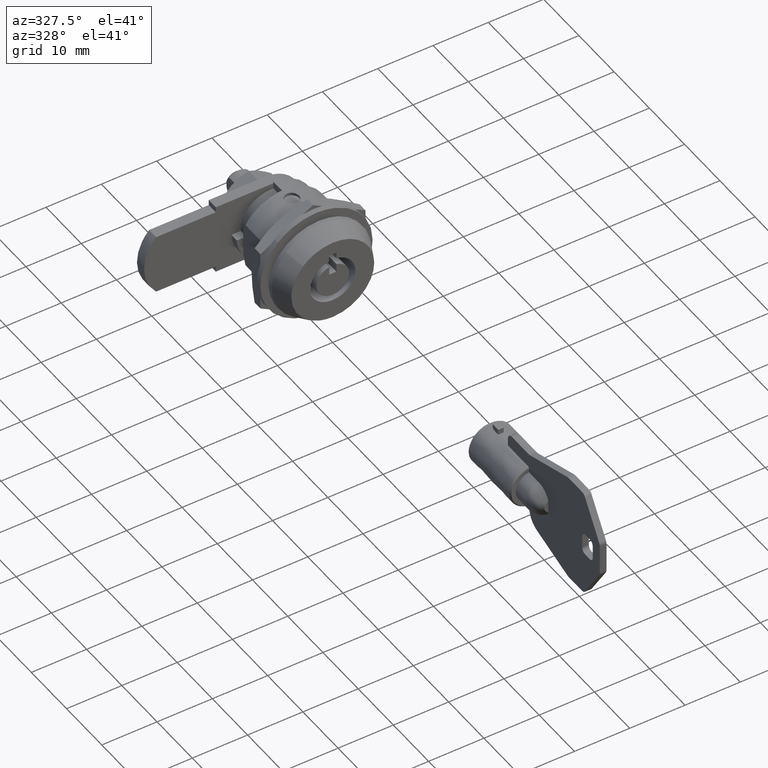
[diagram: clean part render]
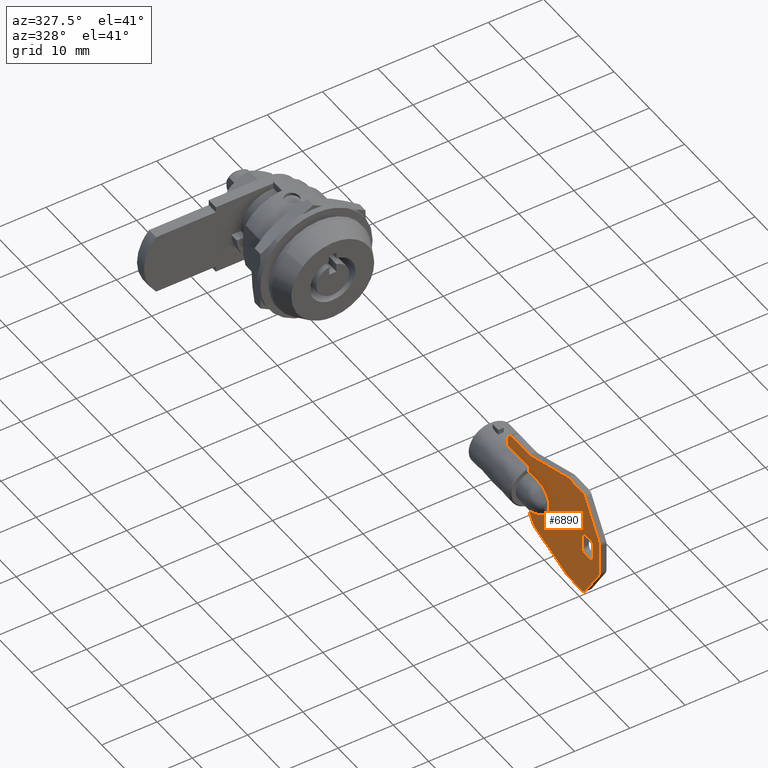
[diagram: same view with one face highlighted and labeled with its STEP entity id]
A machine part, auxiliary view. The second image highlights one B-rep face of the part: STEP entity #6890.
In plain terms, the highlighted face is a freeform B-spline surface patch.
Its self-contained STEP definition (entity closure, byte-faithful):
#5679=CARTESIAN_POINT('',(-56.449500000000000,0.600000000000000,3.954743986656835));
#5680=VERTEX_POINT('',#5679);
#5696=CARTESIAN_POINT('',(-50.649500000000003,0.600000000000000,3.954743986656835));
#5697=VERTEX_POINT('',#5696);
#5698=CARTESIAN_POINT('',(-50.649500000000003,0.600000000000000,3.954743986656835));
#5699=CARTESIAN_POINT('',(-56.449500000000000,0.600000000000000,3.954743986656835));
#5700=QUASI_UNIFORM_CURVE('',1,(#5698,#5699),.UNSPECIFIED.,.F.,.U.);
#5701=EDGE_CURVE('',#5697,#5680,#5700,.T.);
#5800=CARTESIAN_POINT('',(-71.749499999999998,0.600000000000000,1.200000000000000));
#5801=VERTEX_POINT('',#5800);
#5807=CARTESIAN_POINT('',(-71.749499999999998,0.600000000000045,-1.200000000000088));
#5808=VERTEX_POINT('',#5807);
#5809=CARTESIAN_POINT('',(-71.749499999999998,0.600000000000045,-1.200000000000088));
#5810=CARTESIAN_POINT('',(-71.749499999999998,0.600000000000000,1.200000000000000));
#5811=QUASI_UNIFORM_CURVE('',1,(#5809,#5810),.UNSPECIFIED.,.F.,.U.);
#5812=EDGE_CURVE('',#5808,#5801,#5811,.T.);
#5850=CARTESIAN_POINT('',(-72.549500000000009,0.600000000000045,-2.0));
#5851=VERTEX_POINT('',#5850);
#5852=CARTESIAN_POINT('',(-72.549500000000009,0.600000000000045,-2.0));
#5853=CARTESIAN_POINT('',(-72.451308555489618,0.600000000000045,-2.000092947249155));
#5854=CARTESIAN_POINT('',(-72.294301021157239,0.600000000000045,-1.970691603403367));
#5855=CARTESIAN_POINT('',(-72.083872913055274,0.600000000000044,-1.861520411829044));
#5856=CARTESIAN_POINT('',(-71.907328547236588,0.600000000000045,-1.701605605725473));
#5857=CARTESIAN_POINT('',(-71.778965035456693,0.600000000000045,-1.468350441424316));
#5858=CARTESIAN_POINT('',(-71.749464732770207,0.600000000000044,-1.285083247688187));
#5859=CARTESIAN_POINT('',(-71.749499999999998,0.600000000000045,-1.200000000000088));
#5860=B_SPLINE_CURVE_WITH_KNOTS('',3,(#5852,#5853,#5854,#5855,#5856,#5857,#5858,#5859),.UNSPECIFIED.,.F.,.U.,(4,1,1,1,1,4),(0.000000253206061,0.294531439952640,0.471268046318090,0.706859723835922,1.001410568969660,1.256668595518175),.UNSPECIFIED.);
#5861=EDGE_CURVE('',#5851,#5808,#5860,.T.);
#5884=CARTESIAN_POINT('',(-73.949500000000000,0.600000000000045,-2.000000000000085));
#5885=VERTEX_POINT('',#5884);
#5886=CARTESIAN_POINT('',(-73.949500000000000,0.600000000000045,-2.000000000000085));
#5887=CARTESIAN_POINT('',(-72.549500000000009,0.600000000000045,-2.0));
#5888=QUASI_UNIFORM_CURVE('',1,(#5886,#5887),.UNSPECIFIED.,.F.,.U.);
#5889=EDGE_CURVE('',#5885,#5851,#5888,.T.);
#5927=CARTESIAN_POINT('',(-74.749499999999998,0.600000000000045,-1.200000000000088));
#5928=VERTEX_POINT('',#5927);
#5929=CARTESIAN_POINT('',(-74.749499999999998,0.600000000000045,-1.200000000000088));
#5930=CARTESIAN_POINT('',(-74.749542556855019,0.600000000000045,-1.285089375737021));
#5931=CARTESIAN_POINT('',(-74.724202793623178,0.600000000000046,-1.442144080449327));
#5932=CARTESIAN_POINT('',(-74.628589877570647,0.600000000000044,-1.637992890966692));
#5933=CARTESIAN_POINT('',(-74.476026517350377,0.600000000000044,-1.819488120227156));
#5934=CARTESIAN_POINT('',(-74.250554162845461,0.600000000000049,-1.962198045736509));
#5935=CARTESIAN_POINT('',(-74.047681189605385,0.600000000000041,-2.000076958715067));
#5936=CARTESIAN_POINT('',(-73.949500000000000,0.600000000000045,-2.000000000000085));
#5937=B_SPLINE_CURVE_WITH_KNOTS('',3,(#5929,#5930,#5931,#5932,#5933,#5934,#5935,#5936),.UNSPECIFIED.,.F.,.U.,(4,1,1,1,1,4),(0.000000253213507,0.255258279759457,0.471268046321834,0.647931859035308,0.962137408771080,1.256668595518347),.UNSPECIFIED.);
#5938=EDGE_CURVE('',#5928,#5885,#5937,.T.);
#5961=CARTESIAN_POINT('',(-74.749499999999998,0.600000000000045,1.200000000000000));
#5962=VERTEX_POINT('',#5961);
#5963=CARTESIAN_POINT('',(-74.749499999999998,0.600000000000045,1.200000000000000));
#5964=CARTESIAN_POINT('',(-74.749499999999998,0.600000000000045,-1.200000000000088));
#5965=QUASI_UNIFORM_CURVE('',1,(#5963,#5964),.UNSPECIFIED.,.F.,.U.);
#5966=EDGE_CURVE('',#5962,#5928,#5965,.T.);
#6004=CARTESIAN_POINT('',(-73.949500000000000,0.600000000000045,1.999999999999800));
#6005=VERTEX_POINT('',#6004);
#6006=CARTESIAN_POINT('',(-73.949500000000000,0.600000000000045,1.999999999999800));
#6007=CARTESIAN_POINT('',(-74.034589221812169,0.600000000000045,2.000042173454522));
#6008=CARTESIAN_POINT('',(-74.191633542217630,0.600000000000046,1.974693029693586));
#6009=CARTESIAN_POINT('',(-74.429130502944389,0.600000000000045,1.858880178659275));
#6010=CARTESIAN_POINT('',(-74.598934937609584,0.600000000000044,1.689061235257726));
#6011=CARTESIAN_POINT('',(-74.720191468010739,0.600000000000048,1.455194935026146));
#6012=CARTESIAN_POINT('',(-74.749589503330924,0.600000000000044,1.298190341851433));
#6013=CARTESIAN_POINT('',(-74.749499999999998,0.600000000000045,1.200000000000000));
#6014=B_SPLINE_CURVE_WITH_KNOTS('',3,(#6006,#6007,#6008,#6009,#6010,#6011,#6012,#6013),.UNSPECIFIED.,.F.,.U.,(4,1,1,1,1,4),(0.000000253209367,0.255258279756043,0.471268046319142,0.785400802405625,0.962137408771063,1.256668595518009),.UNSPECIFIED.);
#6015=EDGE_CURVE('',#6005,#5962,#6014,.T.);
#6038=CARTESIAN_POINT('',(-72.549500000000009,0.600000000000045,1.999999999999800));
#6039=VERTEX_POINT('',#6038);
#6040=CARTESIAN_POINT('',(-72.549500000000009,0.600000000000045,1.999999999999800));
#6041=CARTESIAN_POINT('',(-73.949500000000000,0.600000000000045,1.999999999999800));
#6042=QUASI_UNIFORM_CURVE('',1,(#6040,#6041),.UNSPECIFIED.,.F.,.U.);
#6043=EDGE_CURVE('',#6039,#6005,#6042,.T.);
#6079=CARTESIAN_POINT('',(-71.749499999999998,0.600000000000000,1.200000000000000));
#6080=CARTESIAN_POINT('',(-71.749465124096503,0.600000000000008,1.285084961670922));
#6081=CARTESIAN_POINT('',(-71.778974756144194,0.600000000000025,1.468342623311177));
#6082=CARTESIAN_POINT('',(-71.907318310587627,0.600000000000042,1.701614646907227));
#6083=CARTESIAN_POINT('',(-72.083877260297783,0.600000000000049,1.861515023231507));
#6084=CARTESIAN_POINT('',(-72.294300029168525,0.600000000000054,1.970695274711989));
#6085=CARTESIAN_POINT('',(-72.451309154801834,0.600000000000048,2.000090764956841));
#6086=CARTESIAN_POINT('',(-72.549500000000009,0.600000000000045,1.999999999999800));
#6087=B_SPLINE_CURVE_WITH_KNOTS('',3,(#6079,#6080,#6081,#6082,#6083,#6084,#6085,#6086),.UNSPECIFIED.,.F.,.U.,(4,1,1,1,1,4),(0.000000253196523,0.255258279746976,0.549809124883157,0.785400802402584,0.962137408769121,1.256668595518096),.UNSPECIFIED.);
#6088=EDGE_CURVE('',#5801,#6039,#6087,.T.);
#6119=CARTESIAN_POINT('',(-76.590699991941506,0.600000000000045,3.247000012534165));
#6120=VERTEX_POINT('',#6119);
#6126=CARTESIAN_POINT('',(-76.749499999999998,0.600000000000045,2.705999999999905));
#6127=VERTEX_POINT('',#6126);
#6128=CARTESIAN_POINT('',(-76.590699991941506,0.600000000000045,3.247000012534165));
#6129=CARTESIAN_POINT('',(-76.694019973510123,0.600000000000045,3.086837102616682));
#6130=CARTESIAN_POINT('',(-76.749989340882166,0.600000000000045,2.896631977132596));
#6131=CARTESIAN_POINT('',(-76.749499999999998,0.600000000000045,2.705999999999905));
#6132=B_SPLINE_CURVE_WITH_KNOTS('',3,(#6128,#6129,#6130,#6131),.UNSPECIFIED.,.F.,.U.,(4,4),(0.000000034955213,0.571608625622774),.UNSPECIFIED.);
#6133=EDGE_CURVE('',#6120,#6127,#6132,.T.);
#6156=CARTESIAN_POINT('',(-76.749499999999998,0.600000000000045,-2.707000000000000));
#6157=VERTEX_POINT('',#6156);
#6158=CARTESIAN_POINT('',(-76.749499999999998,0.600000000000045,-2.707000000000000));
#6159=CARTESIAN_POINT('',(-76.749499999999998,0.600000000000045,2.705999999999905));
#6160=QUASI_UNIFORM_CURVE('',1,(#6158,#6159),.UNSPECIFIED.,.F.,.U.);
#6161=EDGE_CURVE('',#6157,#6127,#6160,.T.);
#6196=CARTESIAN_POINT('',(-76.575233477589791,0.600000000000045,-3.271060479015740));
#6197=VERTEX_POINT('',#6196);
#6198=CARTESIAN_POINT('',(-76.749499999999998,0.600000000000045,-2.707000000000000));
#6199=CARTESIAN_POINT('',(-76.749526903802902,0.600000000000045,-2.794401100571473));
#6200=CARTESIAN_POINT('',(-76.723139286748932,0.600000000000045,-2.994149830777344));
#6201=CARTESIAN_POINT('',(-76.638689682671128,0.600000000000045,-3.178310743442937));
#6202=CARTESIAN_POINT('',(-76.575233477589791,0.600000000000045,-3.271060479015740));
#6203=B_SPLINE_CURVE_WITH_KNOTS('',3,(#6198,#6199,#6200,#6201,#6202),.UNSPECIFIED.,.F.,.U.,(4,1,4),(0.000000021844102,0.262206992928891,0.599330020672555),.UNSPECIFIED.);
#6204=EDGE_CURVE('',#6157,#6197,#6203,.T.);
#6227=CARTESIAN_POINT('',(-72.544800030148707,0.600000000000045,-9.540999953099240));
#6228=VERTEX_POINT('',#6227);
#6229=CARTESIAN_POINT('',(-72.544800030148707,0.600000000000045,-9.540999953099240));
#6230=CARTESIAN_POINT('',(-76.575233477589791,0.600000000000045,-3.271060479015740));
#6231=QUASI_UNIFORM_CURVE('',1,(#6229,#6230),.UNSPECIFIED.,.F.,.U.);
#6232=EDGE_CURVE('',#6228,#6197,#6231,.T.);
#6268=CARTESIAN_POINT('',(-71.703600000000009,0.600000000000045,-10.000000000000201));
#6269=VERTEX_POINT('',#6268);
#6270=CARTESIAN_POINT('',(-72.544800030148707,0.600000000000045,-9.540999953099240));
#6271=CARTESIAN_POINT('',(-72.505398941526295,0.600000000000045,-9.602298782595780));
#6272=CARTESIAN_POINT('',(-72.393378154143534,0.600000000000045,-9.740682868375744));
#6273=CARTESIAN_POINT('',(-72.119833127087006,0.600000000000045,-9.937897060081184));
#6274=CARTESIAN_POINT('',(-71.859819788343884,0.600000000000045,-10.000376966599349));
#6275=CARTESIAN_POINT('',(-71.703600000000009,0.600000000000045,-10.000000000000201));
#6276=B_SPLINE_CURVE_WITH_KNOTS('',3,(#6270,#6271,#6272,#6273,#6274,#6275),.UNSPECIFIED.,.F.,.U.,(4,1,1,4),(0.000000111795139,0.218626020803119,0.530935809670153,0.999442190820403),.UNSPECIFIED.);
#6277=EDGE_CURVE('',#6228,#6269,#6276,.T.);
#6300=CARTESIAN_POINT('',(-67.904799999999994,0.600000000000045,-10.0));
#6301=VERTEX_POINT('',#6300);
#6302=CARTESIAN_POINT('',(-67.904799999999994,0.600000000000045,-10.0));
#6303=CARTESIAN_POINT('',(-71.703600000000009,0.600000000000045,-10.000000000000201));
#6304=QUASI_UNIFORM_CURVE('',1,(#6302,#6303),.UNSPECIFIED.,.F.,.U.);
#6305=EDGE_CURVE('',#6301,#6269,#6304,.T.);
#6339=CARTESIAN_POINT('',(-67.601600000000005,0.600000000000045,-9.952999999999999));
#6340=VERTEX_POINT('',#6339);
#6341=CARTESIAN_POINT('',(-67.904799999999994,0.600000000000045,-10.0));
#6342=CARTESIAN_POINT('',(-67.802113661642409,0.600000000000044,-10.000092084419970));
#6343=CARTESIAN_POINT('',(-67.699440841979452,0.600000000000045,-9.984155325961362));
#6344=CARTESIAN_POINT('',(-67.601600000000005,0.600000000000045,-9.952999999999999));
#6345=B_SPLINE_CURVE_WITH_KNOTS('',3,(#6341,#6342,#6343,#6344),.UNSPECIFIED.,.F.,.U.,(4,4),(0.000000010652725,0.308060877283309),.UNSPECIFIED.);
#6346=EDGE_CURVE('',#6301,#6340,#6345,.T.);
#6369=CARTESIAN_POINT('',(-58.776392768688602,0.600000000000045,-7.144791802858300));
#6370=VERTEX_POINT('',#6369);
#6371=CARTESIAN_POINT('',(-58.776392768688602,0.600000000000045,-7.144791802858300));
#6372=CARTESIAN_POINT('',(-67.601600000000005,0.600000000000045,-9.952999999999999));
#6373=QUASI_UNIFORM_CURVE('',1,(#6371,#6372),.UNSPECIFIED.,.F.,.U.);
#6374=EDGE_CURVE('',#6370,#6340,#6373,.T.);
#6412=CARTESIAN_POINT('',(-56.749500000000012,0.600000000000045,-4.307000000000090));
#6413=VERTEX_POINT('',#6412);
#6414=CARTESIAN_POINT('',(-58.776392768688602,0.600000000000045,-7.144791802858300));
#6415=CARTESIAN_POINT('',(-58.427873887224123,0.600000000000046,-7.025627154550217));
#6416=CARTESIAN_POINT('',(-57.947738067109647,0.600000000000044,-6.753596632849154));
#6417=CARTESIAN_POINT('',(-57.370120746255097,0.600000000000045,-6.175508092192882));
#6418=CARTESIAN_POINT('',(-57.015697374242322,0.600000000000048,-5.612769290630858));
#6419=CARTESIAN_POINT('',(-56.795136511190456,0.600000000000039,-4.946598811788525));
#6420=CARTESIAN_POINT('',(-56.749470229849777,0.600000000000049,-4.520204147419601));
#6421=CARTESIAN_POINT('',(-56.749500000000012,0.600000000000045,-4.307000000000090));
#6422=B_SPLINE_CURVE_WITH_KNOTS('',3,(#6414,#6415,#6416,#6417,#6418,#6419,#6420,#6421),.UNSPECIFIED.,.F.,.U.,(4,1,1,1,1,4),(0.000000082544289,1.104800927938502,1.628138406523068,2.442170962838942,3.081796882679319,3.721413225382552),.UNSPECIFIED.);
#6423=EDGE_CURVE('',#6370,#6413,#6422,.T.);
#6462=CARTESIAN_POINT('',(-50.649500000000003,0.600000000000045,5.300000000000000));
#6463=VERTEX_POINT('',#6462);
#6469=CARTESIAN_POINT('',(-51.849499999999999,0.600000000000045,6.500000000000000));
#6470=VERTEX_POINT('',#6469);
#6471=CARTESIAN_POINT('',(-50.649500000000003,0.600000000000045,5.300000000000000));
#6472=CARTESIAN_POINT('',(-50.649462161798269,0.600000000000045,5.407994637703872));
#6473=CARTESIAN_POINT('',(-50.677533661782910,0.600000000000046,5.614135681138730));
#6474=CARTESIAN_POINT('',(-50.809933612656302,0.600000000000045,5.934052489696290));
#6475=CARTESIAN_POINT('',(-51.031163106370798,0.600000000000044,6.203575308760115));
#6476=CARTESIAN_POINT('',(-51.388296598942723,0.600000000000046,6.435900580509963));
#6477=CARTESIAN_POINT('',(-51.672726191557892,0.600000000000044,6.500280945310728));
#6478=CARTESIAN_POINT('',(-51.849499999999999,0.600000000000045,6.500000000000000));
#6479=B_SPLINE_CURVE_WITH_KNOTS('',3,(#6471,#6472,#6473,#6474,#6475,#6476,#6477,#6478),.UNSPECIFIED.,.F.,.U.,(4,1,1,1,1,4),(0.000000228748210,0.323977944125270,0.618527493011644,1.030860055468668,1.354842900653564,1.885002893242793),.UNSPECIFIED.);
#6480=EDGE_CURVE('',#6463,#6470,#6479,.T.);
#6503=CARTESIAN_POINT('',(-56.749500000000012,0.600000000000045,6.500000000000000));
#6504=VERTEX_POINT('',#6503);
#6505=CARTESIAN_POINT('',(-56.749500000000012,0.600000000000045,6.500000000000000));
#6506=CARTESIAN_POINT('',(-51.849499999999999,0.600000000000045,6.500000000000000));
#6507=QUASI_UNIFORM_CURVE('',1,(#6505,#6506),.UNSPECIFIED.,.F.,.U.);
#6508=EDGE_CURVE('',#6504,#6470,#6507,.T.);
#6531=CARTESIAN_POINT('',(-67.601600000000005,0.600000000000045,9.952999999999999));
#6532=VERTEX_POINT('',#6531);
#6533=CARTESIAN_POINT('',(-67.601600000000005,0.600000000000045,9.952999999999999));
#6534=CARTESIAN_POINT('',(-56.749500000000012,0.600000000000045,6.500000000000000));
#6535=QUASI_UNIFORM_CURVE('',1,(#6533,#6534),.UNSPECIFIED.,.F.,.U.);
#6536=EDGE_CURVE('',#6532,#6504,#6535,.T.);
#6570=CARTESIAN_POINT('',(-67.904799999999994,0.600000000000045,9.999999999999799));
#6571=VERTEX_POINT('',#6570);
#6572=CARTESIAN_POINT('',(-67.601600000000005,0.600000000000045,9.952999999999999));
#6573=CARTESIAN_POINT('',(-67.699440836960363,0.600000000000044,9.984154339987573));
#6574=CARTESIAN_POINT('',(-67.802111993328296,0.600000000000045,10.000089833540139));
#6575=CARTESIAN_POINT('',(-67.904799999999994,0.600000000000045,9.999999999999799));
#6576=B_SPLINE_CURVE_WITH_KNOTS('',3,(#6572,#6573,#6574,#6575),.UNSPECIFIED.,.F.,.U.,(4,4),(0.000000010649329,0.308060645715497),.UNSPECIFIED.);
#6577=EDGE_CURVE('',#6532,#6571,#6576,.T.);
#6600=CARTESIAN_POINT('',(-71.703600000000009,0.600000000000045,9.999999999999799));
#6601=VERTEX_POINT('',#6600);
#6602=CARTESIAN_POINT('',(-71.703600000000009,0.600000000000045,9.999999999999799));
#6603=CARTESIAN_POINT('',(-67.904799999999994,0.600000000000045,9.999999999999799));
#6604=QUASI_UNIFORM_CURVE('',1,(#6602,#6603),.UNSPECIFIED.,.F.,.U.);
#6605=EDGE_CURVE('',#6601,#6571,#6604,.T.);
#6641=CARTESIAN_POINT('',(-72.559557772680591,0.600000000000045,9.517045734328759));
#6642=VERTEX_POINT('',#6641);
#6643=CARTESIAN_POINT('',(-71.703600000000009,0.600000000000045,9.999999999999799));
#6644=CARTESIAN_POINT('',(-71.778509833456383,0.600000000000045,10.000003466159230));
#6645=CARTESIAN_POINT('',(-71.960450561622778,0.600000000000045,9.979501054648145));
#6646=CARTESIAN_POINT('',(-72.281960533690039,0.600000000000044,9.849201139866191));
#6647=CARTESIAN_POINT('',(-72.476798150382436,0.600000000000046,9.654678757184593));
#6648=CARTESIAN_POINT('',(-72.559557772680591,0.600000000000045,9.517045734328759));
#6649=B_SPLINE_CURVE_WITH_KNOTS('',3,(#6643,#6644,#6645,#6646,#6647,#6648),.UNSPECIFIED.,.F.,.U.,(4,1,1,4),(0.000000094577628,0.224750629220160,0.545816627171945,1.027444513007417),.UNSPECIFIED.);
#6650=EDGE_CURVE('',#6601,#6642,#6649,.T.);
#6671=CARTESIAN_POINT('',(-76.590699991941506,0.600000000000045,3.247000012534165));
#6672=CARTESIAN_POINT('',(-72.559557772680591,0.600000000000045,9.517045734328759));
#6673=QUASI_UNIFORM_CURVE('',1,(#6671,#6672),.UNSPECIFIED.,.F.,.U.);
#6674=EDGE_CURVE('',#6120,#6642,#6673,.T.);
#6785=CARTESIAN_POINT('',(-78.053191181043729,0.600000000000000,-10.998999961236320));
#6786=CARTESIAN_POINT('',(-49.345806485434437,0.600000000000000,-10.998999961236320));
#6787=CARTESIAN_POINT('',(-78.053191181043729,0.600000000000000,10.999000497677720));
#6788=CARTESIAN_POINT('',(-49.345806485434437,0.600000000000000,10.999000497677720));
#6789=B_SPLINE_SURFACE_WITH_KNOTS('',1,1,((#6785,#6787),(#6786,#6788)),.UNSPECIFIED.,.F.,.F.,.U.,(2,2),(2,2),(0.0,28.707384695609289),(0.0,21.998000458914039),.UNSPECIFIED.);
#6790=CARTESIAN_POINT('',(-62.149500000000003,0.600000000000000,-1.161895003862254));
#6791=VERTEX_POINT('',#6790);
#6792=CARTESIAN_POINT('',(-59.449500000000000,0.600000000000000,-2.939387691339710));
#6793=VERTEX_POINT('',#6792);
#6794=CARTESIAN_POINT('',(-62.149500000000003,0.600000000000000,-1.161895003862254));
#6795=CARTESIAN_POINT('',(-62.029855503114831,0.600000000000001,-1.440356387763224));
#6796=CARTESIAN_POINT('',(-61.799280255614242,0.599999999999999,-1.806777119249487));
#6797=CARTESIAN_POINT('',(-61.297132823653641,0.600000000000000,-2.315121386309627));
#6798=CARTESIAN_POINT('',(-60.800581884113932,0.600000000000000,-2.642005111304140));
#6799=CARTESIAN_POINT('',(-60.126866307514341,0.600000000000000,-2.884545163631873));
#6800=CARTESIAN_POINT('',(-59.699075662754247,0.599999999999999,-2.939461034852552));
#6801=CARTESIAN_POINT('',(-59.449500000000000,0.600000000000000,-2.939387691339710));
#6802=B_SPLINE_CURVE_WITH_KNOTS('',3,(#6794,#6795,#6796,#6797,#6798,#6799,#6800,#6801),.UNSPECIFIED.,.F.,.U.,(4,1,1,1,1,4),(0.000000083580903,0.909162524545588,1.283523794246485,2.139201033156103,2.674007765529615,3.422724743820884),.UNSPECIFIED.);
#6803=EDGE_CURVE('',#6791,#6793,#6802,.T.);
#6804=ORIENTED_EDGE('',*,*,#6803,.T.);
#6805=CARTESIAN_POINT('',(-56.749500000000012,0.600000000000000,-2.939387691339610));
#6806=VERTEX_POINT('',#6805);
#6807=CARTESIAN_POINT('',(-59.449500000000000,0.600000000000000,-2.939387691339710));
#6808=CARTESIAN_POINT('',(-56.749500000000012,0.600000000000000,-2.939387691339610));
#6809=QUASI_UNIFORM_CURVE('',1,(#6807,#6808),.UNSPECIFIED.,.F.,.U.);
#6810=EDGE_CURVE('',#6793,#6806,#6809,.T.);
#6811=ORIENTED_EDGE('',*,*,#6810,.T.);
#6812=CARTESIAN_POINT('',(-56.749500000000012,0.600000000000000,-2.939387691339610));
#6813=CARTESIAN_POINT('',(-56.749500000000012,0.600000000000045,-4.307000000000090));
#6814=QUASI_UNIFORM_CURVE('',1,(#6812,#6813),.UNSPECIFIED.,.F.,.U.);
#6815=EDGE_CURVE('',#6806,#6413,#6814,.T.);
#6816=ORIENTED_EDGE('',*,*,#6815,.T.);
#6817=ORIENTED_EDGE('',*,*,#6423,.F.);
#6818=ORIENTED_EDGE('',*,*,#6374,.T.);
#6819=ORIENTED_EDGE('',*,*,#6346,.F.);
#6820=ORIENTED_EDGE('',*,*,#6305,.T.);
#6821=ORIENTED_EDGE('',*,*,#6277,.F.);
#6822=ORIENTED_EDGE('',*,*,#6232,.T.);
#6823=ORIENTED_EDGE('',*,*,#6204,.F.);
#6824=ORIENTED_EDGE('',*,*,#6161,.T.);
#6825=ORIENTED_EDGE('',*,*,#6133,.F.);
#6826=ORIENTED_EDGE('',*,*,#6674,.T.);
#6827=ORIENTED_EDGE('',*,*,#6650,.F.);
#6828=ORIENTED_EDGE('',*,*,#6605,.T.);
#6829=ORIENTED_EDGE('',*,*,#6577,.F.);
#6830=ORIENTED_EDGE('',*,*,#6536,.T.);
#6831=ORIENTED_EDGE('',*,*,#6508,.T.);
#6832=ORIENTED_EDGE('',*,*,#6480,.F.);
#6833=CARTESIAN_POINT('',(-50.649500000000003,0.600000000000045,5.300000000000000));
#6834=CARTESIAN_POINT('',(-50.649500000000003,0.600000000000000,3.954743986656835));
#6835=QUASI_UNIFORM_CURVE('',1,(#6833,#6834),.UNSPECIFIED.,.F.,.U.);
#6836=EDGE_CURVE('',#6463,#5697,#6835,.T.);
#6837=ORIENTED_EDGE('',*,*,#6836,.T.);
#6838=ORIENTED_EDGE('',*,*,#5701,.T.);
#6839=CARTESIAN_POINT('',(-56.649500000000003,0.600000000000000,3.752332607858545));
#6840=VERTEX_POINT('',#6839);
#6841=CARTESIAN_POINT('',(-56.649500000000003,0.600000000000000,3.752332607858545));
#6842=CARTESIAN_POINT('',(-56.449500000000000,0.600000000000000,3.954743986656835));
#6843=QUASI_UNIFORM_CURVE('',1,(#6841,#6842),.UNSPECIFIED.,.F.,.U.);
#6844=EDGE_CURVE('',#6840,#5680,#6843,.T.);
#6845=ORIENTED_EDGE('',*,*,#6844,.F.);
#6846=CARTESIAN_POINT('',(-56.649500000000003,0.600000000000000,2.939387691339610));
#6847=VERTEX_POINT('',#6846);
#6848=CARTESIAN_POINT('',(-56.649500000000003,0.600000000000000,3.752332607858545));
#6849=CARTESIAN_POINT('',(-56.649500000000003,0.600000000000000,2.939387691339610));
#6850=QUASI_UNIFORM_CURVE('',1,(#6848,#6849),.UNSPECIFIED.,.F.,.U.);
#6851=EDGE_CURVE('',#6840,#6847,#6850,.T.);
#6852=ORIENTED_EDGE('',*,*,#6851,.T.);
#6853=CARTESIAN_POINT('',(-59.449500000000000,0.600000000000000,2.939387691339710));
#6854=VERTEX_POINT('',#6853);
#6855=CARTESIAN_POINT('',(-56.649500000000003,0.600000000000000,2.939387691339610));
#6856=CARTESIAN_POINT('',(-59.449500000000000,0.600000000000000,2.939387691339710));
#6857=QUASI_UNIFORM_CURVE('',1,(#6855,#6856),.UNSPECIFIED.,.F.,.U.);
#6858=EDGE_CURVE('',#6847,#6854,#6857,.T.);
#6859=ORIENTED_EDGE('',*,*,#6858,.T.);
#6860=CARTESIAN_POINT('',(-62.149500000000003,0.600000000000000,1.161895003862254));
#6861=VERTEX_POINT('',#6860);
#6862=CARTESIAN_POINT('',(-59.449500000000000,0.600000000000000,2.939387691339710));
#6863=CARTESIAN_POINT('',(-59.752572590761297,0.600000000000000,2.939555129418838));
#6864=CARTESIAN_POINT('',(-60.269436576201571,0.600000000000001,2.858682664679229));
#6865=CARTESIAN_POINT('',(-60.924865175172847,0.599999999999999,2.567189582717342));
#6866=CARTESIAN_POINT('',(-61.388873536460913,0.600000000000002,2.230472528166983));
#6867=CARTESIAN_POINT('',(-61.820681307026533,0.599999999999994,1.777213601478733));
#6868=CARTESIAN_POINT('',(-62.043889584103212,0.600000000000004,1.407566025371147));
#6869=CARTESIAN_POINT('',(-62.149500000000003,0.600000000000000,1.161895003862254));
#6870=B_SPLINE_CURVE_WITH_KNOTS('',3,(#6862,#6863,#6864,#6865,#6866,#6867,#6868,#6869),.UNSPECIFIED.,.F.,.U.,(4,1,1,1,1,4),(0.000000083580562,0.909162524544925,1.550942107685540,2.139201033155655,2.620524854665215,3.422724743820881),.UNSPECIFIED.);
#6871=EDGE_CURVE('',#6854,#6861,#6870,.T.);
#6872=ORIENTED_EDGE('',*,*,#6871,.T.);
#6873=CARTESIAN_POINT('',(-62.149500000000003,0.600000000000000,1.161895003862254));
#6874=CARTESIAN_POINT('',(-62.149500000000003,0.600000000000000,-1.161895003862254));
#6875=QUASI_UNIFORM_CURVE('',1,(#6873,#6874),.UNSPECIFIED.,.F.,.U.);
#6876=EDGE_CURVE('',#6861,#6791,#6875,.T.);
#6877=ORIENTED_EDGE('',*,*,#6876,.T.);
#6878=EDGE_LOOP('',(#6804,#6811,#6816,#6817,#6818,#6819,#6820,#6821,#6822,#6823,#6824,#6825,#6826,#6827,#6828,#6829,#6830,#6831,#6832,#6837,#6838,#6845,#6852,#6859,#6872,#6877));
#6879=FACE_OUTER_BOUND('',#6878,.T.);
#6880=ORIENTED_EDGE('',*,*,#5812,.T.);
#6881=ORIENTED_EDGE('',*,*,#6088,.T.);
#6882=ORIENTED_EDGE('',*,*,#6043,.T.);
#6883=ORIENTED_EDGE('',*,*,#6015,.T.);
#6884=ORIENTED_EDGE('',*,*,#5966,.T.);
#6885=ORIENTED_EDGE('',*,*,#5938,.T.);
#6886=ORIENTED_EDGE('',*,*,#5889,.T.);
#6887=ORIENTED_EDGE('',*,*,#5861,.T.);
#6888=EDGE_LOOP('',(#6880,#6881,#6882,#6883,#6884,#6885,#6886,#6887));
#6889=FACE_BOUND('',#6888,.T.);
#6890=ADVANCED_FACE('',(#6879,#6889),#6789,.F.);